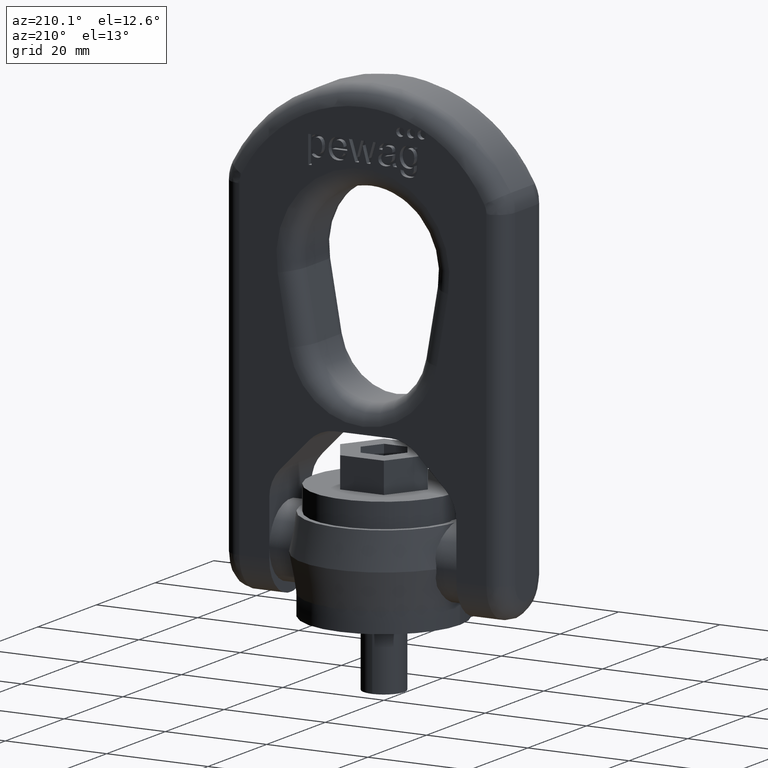
[diagram: clean part render]
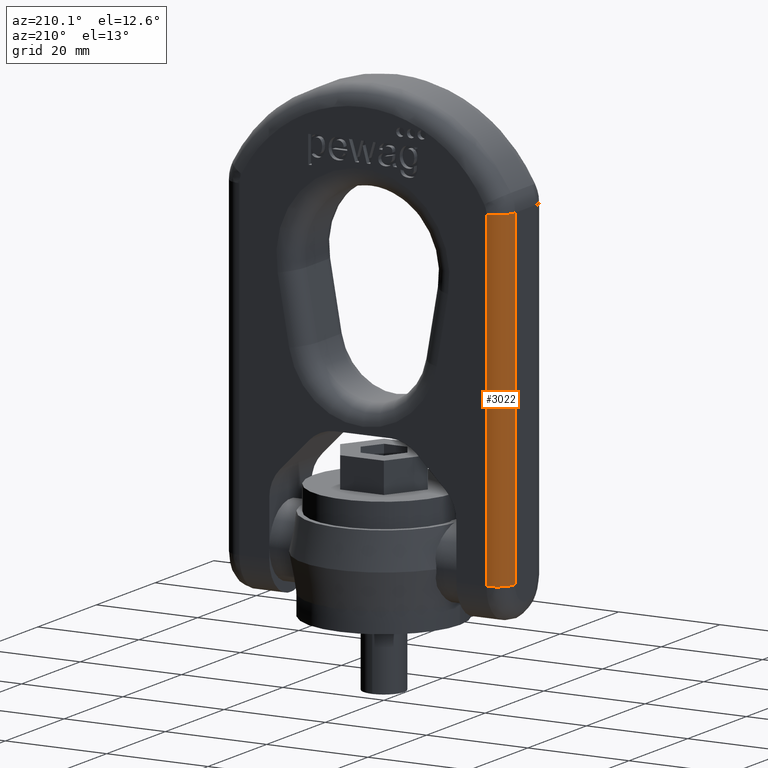
[diagram: same view with one face highlighted and labeled with its STEP entity id]
A machine part, auxiliary view. The second image highlights one B-rep face of the part: STEP entity #3022.
In plain terms, the highlighted cylindrical surface (edge-blend (fillet) strip) has radius 3.6 mm, axis along (-0, 0, -1).
Its self-contained STEP definition (entity closure, byte-faithful):
#1823=LINE('',#7423,#2131);
#1865=LINE('',#7745,#2173);
#2131=VECTOR('',#6282,1.);
#2173=VECTOR('',#6346,1.);
#2647=FACE_OUTER_BOUND('',#3415,.T.);
#3022=ADVANCED_FACE('',(#2647),#3062,.T.);
#3062=CYLINDRICAL_SURFACE('',#6035,3.6);
#3415=EDGE_LOOP('',(#4625,#4626,#4627,#4628));
#4625=ORIENTED_EDGE('',*,*,#5729,.T.);
#4626=ORIENTED_EDGE('',*,*,#5361,.F.);
#4627=ORIENTED_EDGE('',*,*,#5732,.F.);
#4628=ORIENTED_EDGE('',*,*,#5278,.F.);
#4739=VERTEX_POINT('',#7058);
#4840=VERTEX_POINT('',#7424);
#4920=VERTEX_POINT('',#7744);
#4921=VERTEX_POINT('',#7746);
#5278=EDGE_CURVE('',#4739,#4840,#1823,.T.);
#5361=EDGE_CURVE('',#4920,#4921,#1865,.T.);
#5729=EDGE_CURVE('',#4739,#4921,#5807,.T.);
#5732=EDGE_CURVE('',#4840,#4920,#5810,.T.);
#5807=CIRCLE('',#6030,3.6);
#5810=CIRCLE('',#6034,3.6);
#6030=AXIS2_PLACEMENT_3D('',#9715,#6868,#6869);
#6034=AXIS2_PLACEMENT_3D('',#9735,#6876,#6877);
#6035=AXIS2_PLACEMENT_3D('',#9736,#6878,#6879);
#6282=DIRECTION('',(1.4065325480893E-16,-3.29538019783828E-31,1.));
#6346=DIRECTION('',(-1.4065325480893E-16,3.29538019783828E-31,-1.));
#6868=DIRECTION('',(0.,0.,1.));
#6869=DIRECTION('',(1.,0.,0.));
#6876=DIRECTION('',(0.,0.,1.));
#6877=DIRECTION('',(1.,0.,0.));
#6878=DIRECTION('',(-1.4065325480893E-16,3.29538019783828E-31,-1.));
#6879=DIRECTION('',(-1.,0.,0.));
#7058=CARTESIAN_POINT('',(-24.4,7.20000000000006,9.20000000000003));
#7423=CARTESIAN_POINT('',(-24.4,7.20000000000006,74.324996872654));
#7424=CARTESIAN_POINT('',(-24.4,7.20000000000006,74.324996872654));
#7744=CARTESIAN_POINT('',(-28.,3.60000000000006,74.324996872654));
#7745=CARTESIAN_POINT('',(-28.,3.60000000000006,9.20000000000003));
#7746=CARTESIAN_POINT('',(-28.,3.6,9.20000000000003));
#9715=CARTESIAN_POINT('',(-24.4,3.6,9.20000000000003));
#9735=CARTESIAN_POINT('',(-24.4,3.60000000000006,74.324996872654));
#9736=CARTESIAN_POINT('',(-24.4,3.60000000000006,63.2222222222222));